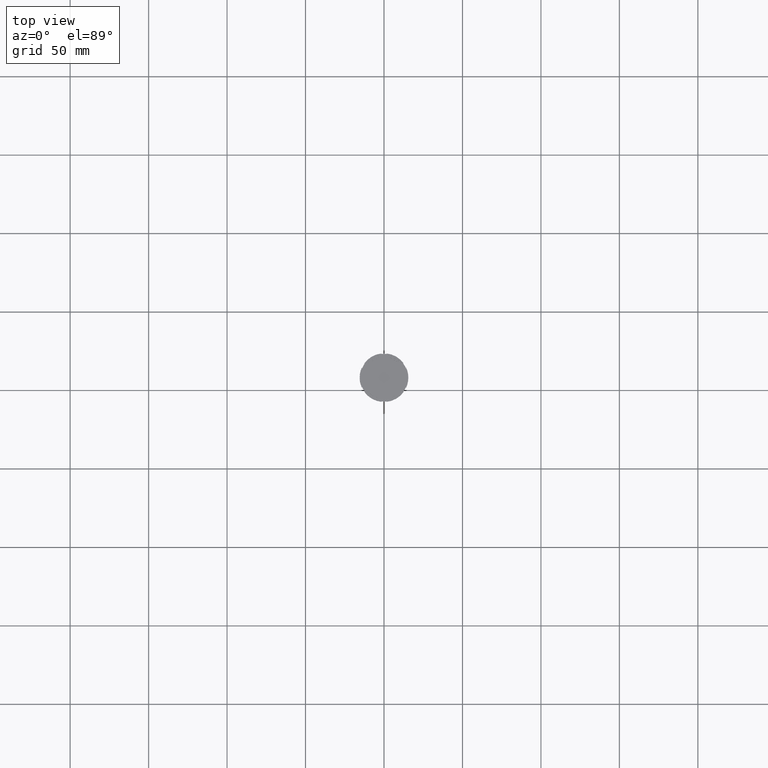
[diagram: clean part render]
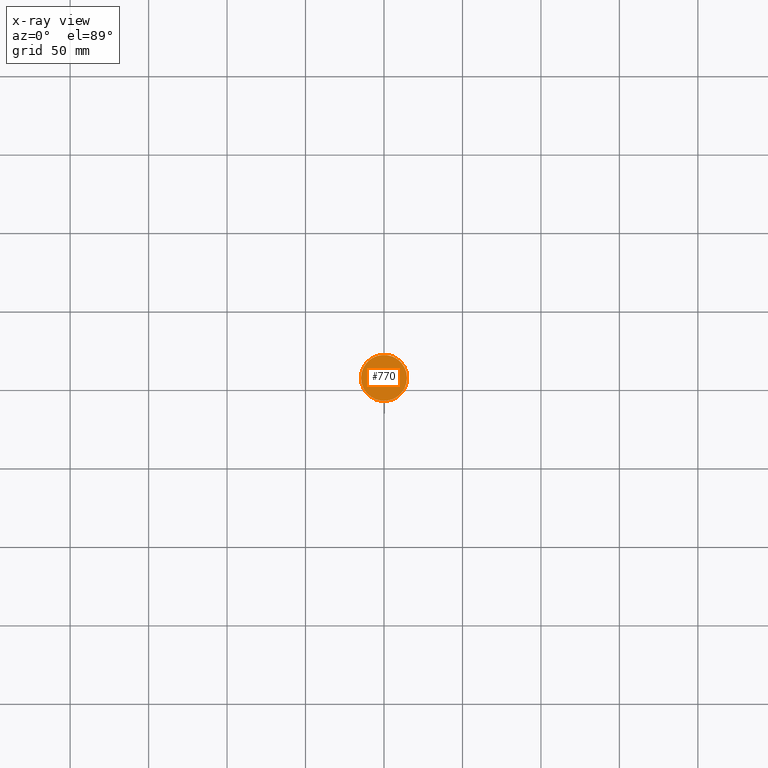
[diagram: x-ray — body ghosted, one internal face saturated and labeled with its STEP entity id]
A machine part, top view, then the same camera in x-ray: the body is ghosted and one INTERNAL B-rep face — a face not visible from any outside direction — is saturated and labeled: STEP entity #770.
In plain terms, the highlighted planar face has unit normal (0, 0, -1).
Its self-contained STEP definition (entity closure, byte-faithful):
#65 = DIRECTION ( 'NONE',  ( -0.000000000000000000, -0.000000000000000000, 1.000000000000000000 ) ) ;
#166 = FACE_OUTER_BOUND ( 'NONE', #2072, .T. ) ;
#170 = DIRECTION ( 'NONE',  ( -0.000000000000000000, -0.000000000000000000, 1.000000000000000000 ) ) ;
#505 = AXIS2_PLACEMENT_3D ( 'NONE', #1053, #1932, #2570 ) ;
#770 = ADVANCED_FACE ( 'NONE', ( #166 ), #1676, .F. ) ;
#879 = AXIS2_PLACEMENT_3D ( 'NONE', #957, #65, #2105 ) ;
#957 = CARTESIAN_POINT ( 'NONE',  ( 0.000000000000000000, 0.000000000000000000, -12.00000000000000000 ) ) ;
#1053 = CARTESIAN_POINT ( 'NONE',  ( 0.000000000000000000, 0.000000000000000000, -12.00000000000000000 ) ) ;
#1058 = DIRECTION ( 'NONE',  ( -1.000000000000000000, 0.000000000000000000, 0.000000000000000000 ) ) ;
#1065 = CIRCLE ( 'NONE', #879, 14.70000000000000107 ) ;
#1277 = CARTESIAN_POINT ( 'NONE',  ( 0.000000000000000000, 0.000000000000000000, -12.00000000000000000 ) ) ;
#1341 = AXIS2_PLACEMENT_3D ( 'NONE', #1277, #170, #1058 ) ;
#1464 = ORIENTED_EDGE ( 'NONE', *, *, #1866, .T. ) ;
#1504 = ORIENTED_EDGE ( 'NONE', *, *, #1651, .T. ) ;
#1514 = VERTEX_POINT ( 'NONE', #2343 ) ;
#1620 = VERTEX_POINT ( 'NONE', #2408 ) ;
#1651 = EDGE_CURVE ( 'NONE', #1620, #1514, #2600, .T. ) ;
#1676 = PLANE ( 'NONE',  #505 ) ;
#1866 = EDGE_CURVE ( 'NONE', #1514, #1620, #1065, .T. ) ;
#1932 = DIRECTION ( 'NONE',  ( 0.000000000000000000, 0.000000000000000000, -1.000000000000000000 ) ) ;
#2072 = EDGE_LOOP ( 'NONE', ( #1464, #1504 ) ) ;
#2105 = DIRECTION ( 'NONE',  ( -1.000000000000000000, 0.000000000000000000, 0.000000000000000000 ) ) ;
#2343 = CARTESIAN_POINT ( 'NONE',  ( -14.70000000000000107, 0.000000000000000000, -12.00000000000000000 ) ) ;
#2408 = CARTESIAN_POINT ( 'NONE',  ( 14.70000000000000107, 1.818600496733819553E-15, -12.00000000000000000 ) ) ;
#2570 = DIRECTION ( 'NONE',  ( -1.000000000000000000, 0.000000000000000000, -0.000000000000000000 ) ) ;
#2600 = CIRCLE ( 'NONE', #1341, 14.70000000000000107 ) ;